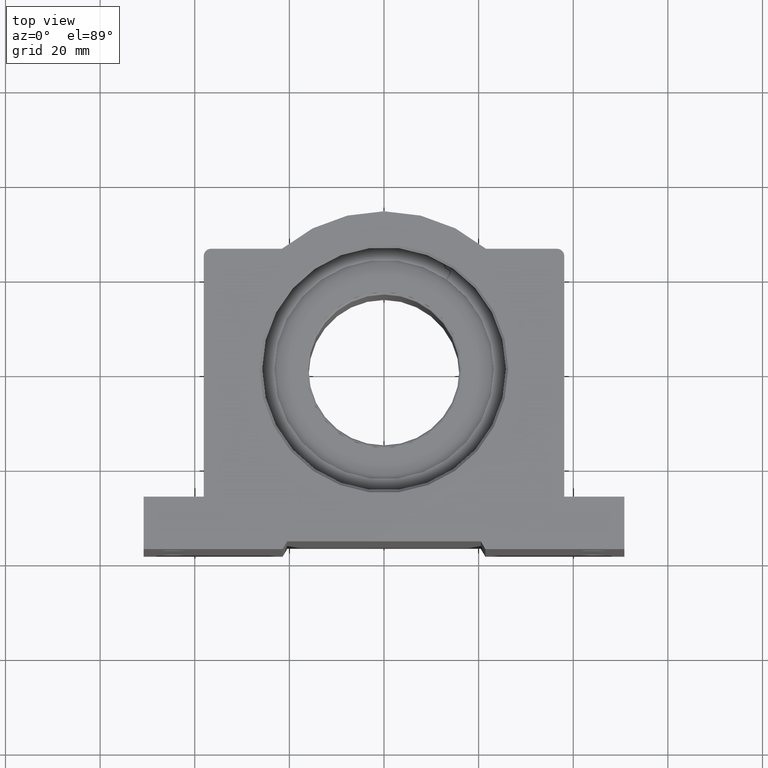
[diagram: clean part render]
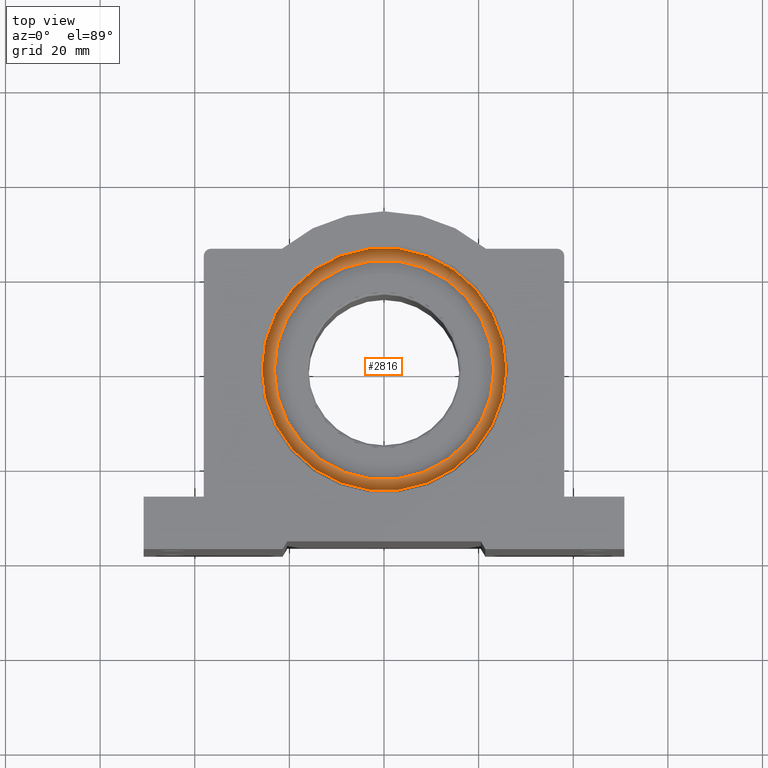
[diagram: same view with one face highlighted and labeled with its STEP entity id]
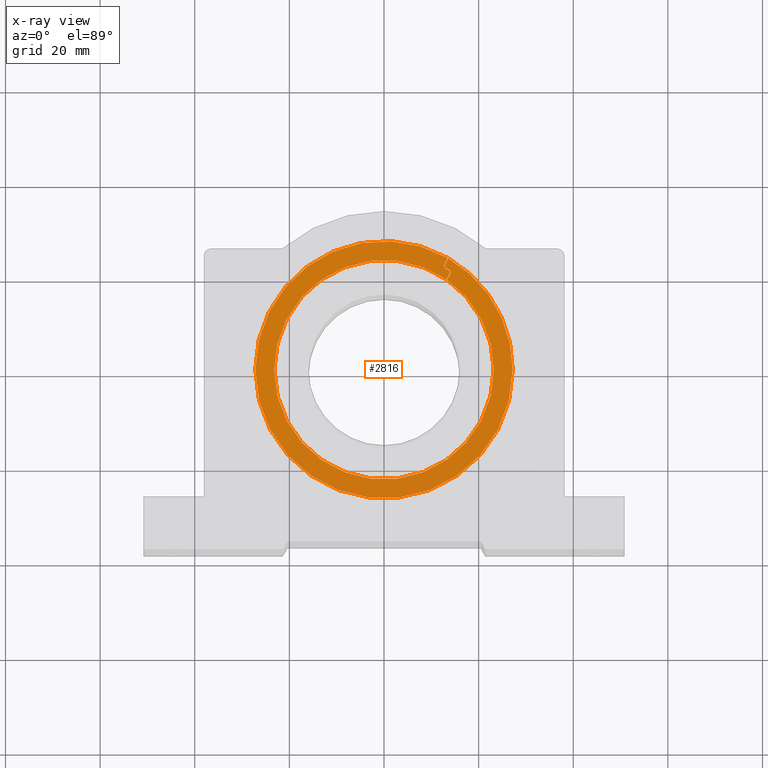
[diagram: x-ray of the same camera — body ghosted, the highlighted face saturated]
A machine part, top view. The second image highlights one B-rep face of the part: STEP entity #2816.
The next image is the same camera in x-ray: the body ghosted, the highlighted face saturated — about 0% of this face is hidden behind the body in this view.
In plain terms, the highlighted planar face has unit normal (0, 0, 1).
Its self-contained STEP definition (entity closure, byte-faithful):
#24 = EDGE_CURVE ( 'NONE', #1596, #2383, #7458, .T. ) ;
#51 = ORIENTED_EDGE ( 'NONE', *, *, #7017, .F. ) ;
#52 = CARTESIAN_POINT ( 'NONE',  ( 0.5512493402323017655, 0.7967918649211744864, 1.378249999999999975 ) ) ;
#56 = CARTESIAN_POINT ( 'NONE',  ( 0.5188053356329881405, 0.8459305338874979485, 1.378249999999999975 ) ) ;
#89 = VERTEX_POINT ( 'NONE', #3449 ) ;
#214 = AXIS2_PLACEMENT_3D ( 'NONE', #5819, #3859, #3898 ) ;
#246 = CARTESIAN_POINT ( 'NONE',  ( 0.000000000000000000, 0.000000000000000000, 1.378249999999999975 ) ) ;
#266 = CARTESIAN_POINT ( 'NONE',  ( 0.5497773379326449383, 0.8099585315878409242, 1.378249999999999975 ) ) ;
#279 = DIRECTION ( 'NONE',  ( 0.000000000000000000, 0.000000000000000000, 1.000000000000000000 ) ) ;
#306 = AXIS2_PLACEMENT_3D ( 'NONE', #5002, #6887, #6146 ) ;
#336 = VERTEX_POINT ( 'NONE', #3874 ) ;
#341 = CARTESIAN_POINT ( 'NONE',  ( 0.5319720022996546893, 0.8687358695204882020, 1.378249999999999975 ) ) ;
#363 = DIRECTION ( 'NONE',  ( 1.000000000000000000, 0.000000000000000000, 0.000000000000000000 ) ) ;
#483 = EDGE_CURVE ( 'NONE', #2383, #6367, #4600, .T. ) ;
#488 = CARTESIAN_POINT ( 'NONE',  ( 0.5163053356329879717, 0.8416004068685756234, 1.378249999999999975 ) ) ;
#497 = PLANE ( 'NONE',  #5663 ) ;
#538 = ORIENTED_EDGE ( 'NONE', *, *, #24, .F. ) ;
#607 = CIRCLE ( 'NONE', #214, 0.9129999999999999227 ) ;
#690 = EDGE_CURVE ( 'NONE', #6367, #2752, #3401, .T. ) ;
#696 = AXIS2_PLACEMENT_3D ( 'NONE', #7295, #3525, #363 ) ;
#699 = AXIS2_PLACEMENT_3D ( 'NONE', #1570, #3321, #6558 ) ;
#704 = LINE ( 'NONE', #5793, #6347 ) ;
#750 = VECTOR ( 'NONE', #6754, 39.37007874015748143 ) ;
#752 = DIRECTION ( 'NONE',  ( 0.4999999999999968359, 0.8660254037844403729, 0.000000000000000000 ) ) ;
#840 = VERTEX_POINT ( 'NONE', #4706 ) ;
#914 = EDGE_CURVE ( 'NONE', #4393, #3174, #4609, .T. ) ;
#1002 = DIRECTION ( 'NONE',  ( 1.000000000000000000, 0.000000000000000000, 0.000000000000000000 ) ) ;
#1021 = CIRCLE ( 'NONE', #3608, 0.02633333333333347931 ) ;
#1028 = VECTOR ( 'NONE', #4930, 39.37007874015748143 ) ;
#1101 = AXIS2_PLACEMENT_3D ( 'NONE', #4118, #6008, #1195 ) ;
#1118 = ORIENTED_EDGE ( 'NONE', *, *, #3172, .F. ) ;
#1143 = VERTEX_POINT ( 'NONE', #1706 ) ;
#1195 = DIRECTION ( 'NONE',  ( 1.000000000000000000, 0.000000000000000000, 0.000000000000000000 ) ) ;
#1208 = CARTESIAN_POINT ( 'NONE',  ( 0.5416106712659781719, 0.8327638672208313997, 1.378249999999999975 ) ) ;
#1349 = CIRCLE ( 'NONE', #306, 0.02633333333333347931 ) ;
#1360 = ORIENTED_EDGE ( 'NONE', *, *, #5368, .F. ) ;
#1452 = CIRCLE ( 'NONE', #7952, 0.03133333333333342824 ) ;
#1478 = VERTEX_POINT ( 'NONE', #52 ) ;
#1480 = DIRECTION ( 'NONE',  ( -0.4999999999999965583, -0.8660254037844404840, -0.000000000000000000 ) ) ;
#1487 = VERTEX_POINT ( 'NONE', #1934 ) ;
#1505 = CIRCLE ( 'NONE', #699, 0.02133333333333332915 ) ;
#1546 = VERTEX_POINT ( 'NONE', #3114 ) ;
#1570 = CARTESIAN_POINT ( 'NONE',  ( 0.5284440045993115120, 0.8099585315878409242, 1.378249999999999975 ) ) ;
#1596 = VERTEX_POINT ( 'NONE', #1208 ) ;
#1604 = AXIS2_PLACEMENT_3D ( 'NONE', #341, #1797, #4939 ) ;
#1633 = DIRECTION ( 'NONE',  ( 0.000000000000000000, 0.000000000000000000, 1.000000000000000000 ) ) ;
#1641 = CIRCLE ( 'NONE', #7768, 0.02133333333333332915 ) ;
#1682 = VERTEX_POINT ( 'NONE', #266 ) ;
#1694 = VERTEX_POINT ( 'NONE', #3275 ) ;
#1706 = CARTESIAN_POINT ( 'NONE',  ( 0.5163053356329880828, 0.8416004068685757344, 1.378249999999999975 ) ) ;
#1760 = CARTESIAN_POINT ( 'NONE',  ( -1.070999999999999952, 0.000000000000000000, 1.378249999999999975 ) ) ;
#1763 = EDGE_CURVE ( 'NONE', #1682, #8002, #1505, .T. ) ;
#1768 = CARTESIAN_POINT ( 'NONE',  ( 0.5469192132133797735, 0.7992918649211745441, 1.378249999999999975 ) ) ;
#1797 = DIRECTION ( 'NONE',  ( -0.000000000000000000, -0.000000000000000000, -1.000000000000000000 ) ) ;
#1934 = CARTESIAN_POINT ( 'NONE',  ( 0.5048365396477422218, 0.8844025361871548085, 1.378249999999999975 ) ) ;
#1967 = ORIENTED_EDGE ( 'NONE', *, *, #7185, .F. ) ;
#2043 = ORIENTED_EDGE ( 'NONE', *, *, #6411, .F. ) ;
#2117 = CARTESIAN_POINT ( 'NONE',  ( 0.5319720022996546893, 0.8687358695204882020, 1.378249999999999975 ) ) ;
#2239 = CARTESIAN_POINT ( 'NONE',  ( 0.000000000000000000, 0.000000000000000000, 1.378249999999999975 ) ) ;
#2248 = CIRCLE ( 'NONE', #696, 1.070999999999999952 ) ;
#2383 = VERTEX_POINT ( 'NONE', #56 ) ;
#2396 = CARTESIAN_POINT ( 'NONE',  ( 0.5188053356329881405, 0.8459305338874979485, 1.378249999999999975 ) ) ;
#2452 = CARTESIAN_POINT ( 'NONE',  ( 0.000000000000000000, 0.000000000000000000, 1.378249999999999975 ) ) ;
#2643 = VECTOR ( 'NONE', #752, 39.37007874015748143 ) ;
#2752 = VERTEX_POINT ( 'NONE', #7277 ) ;
#2756 = DIRECTION ( 'NONE',  ( 0.000000000000000000, 0.000000000000000000, 1.000000000000000000 ) ) ;
#2816 = ADVANCED_FACE ( 'NONE', ( #7993 ), #497, .T. ) ;
#2963 = EDGE_CURVE ( 'NONE', #1546, #4393, #6601, .T. ) ;
#2996 = CIRCLE ( 'NONE', #5600, 0.9129999999999999227 ) ;
#3019 = ORIENTED_EDGE ( 'NONE', *, *, #914, .T. ) ;
#3057 = CARTESIAN_POINT ( 'NONE',  ( 0.000000000000000000, 0.000000000000000000, 1.378249999999999975 ) ) ;
#3114 = CARTESIAN_POINT ( 'NONE',  ( 0.5311640372816772704, 0.9300030997252800580, 1.378249999999999975 ) ) ;
#3139 = CARTESIAN_POINT ( 'NONE',  ( -0.9129999999999999227, 0.000000000000000000, 1.378249999999999975 ) ) ;
#3172 = EDGE_CURVE ( 'NONE', #336, #1682, #1641, .T. ) ;
#3174 = VERTEX_POINT ( 'NONE', #3518 ) ;
#3210 = EDGE_CURVE ( 'NONE', #89, #840, #607, .T. ) ;
#3239 = VECTOR ( 'NONE', #7344, 39.37007874015748854 ) ;
#3253 = ORIENTED_EDGE ( 'NONE', *, *, #2963, .T. ) ;
#3275 = CARTESIAN_POINT ( 'NONE',  ( 0.5547773379326450538, 0.8099585315878409242, 1.378249999999999975 ) ) ;
#3321 = DIRECTION ( 'NONE',  ( -0.000000000000000000, -0.000000000000000000, -1.000000000000000000 ) ) ;
#3401 = LINE ( 'NONE', #7085, #2643 ) ;
#3403 = ORIENTED_EDGE ( 'NONE', *, *, #690, .F. ) ;
#3449 = CARTESIAN_POINT ( 'NONE',  ( 0.9129999999999999227, 1.118102527621533344E-16, 1.378249999999999975 ) ) ;
#3518 = CARTESIAN_POINT ( 'NONE',  ( 1.070999999999999952, 1.311596721886815216E-16, 1.378249999999999975 ) ) ;
#3525 = DIRECTION ( 'NONE',  ( 0.000000000000000000, 0.000000000000000000, 1.000000000000000000 ) ) ;
#3608 = AXIS2_PLACEMENT_3D ( 'NONE', #4082, #6589, #1002 ) ;
#3619 = EDGE_LOOP ( 'NONE', ( #3403, #4969, #538, #3789, #4042, #51, #4414, #2043, #1967, #6383, #6983, #1118, #1360, #6001, #5531, #3253, #3019, #6134 ) ) ;
#3627 = CARTESIAN_POINT ( 'NONE',  ( 0.5190839567990592762, 0.7510797865698639608, 1.378249999999999975 ) ) ;
#3789 = ORIENTED_EDGE ( 'NONE', *, *, #7675, .F. ) ;
#3859 = DIRECTION ( 'NONE',  ( 0.000000000000000000, 0.000000000000000000, 1.000000000000000000 ) ) ;
#3874 = CARTESIAN_POINT ( 'NONE',  ( 0.5391106712659781142, 0.8284337402019089636, 1.378249999999999975 ) ) ;
#3898 = DIRECTION ( 'NONE',  ( 1.000000000000000000, 0.000000000000000000, 0.000000000000000000 ) ) ;
#3939 = EDGE_CURVE ( 'NONE', #1478, #1694, #1021, .T. ) ;
#3968 = VERTEX_POINT ( 'NONE', #3139 ) ;
#4024 = EDGE_CURVE ( 'NONE', #8002, #5148, #4404, .T. ) ;
#4042 = ORIENTED_EDGE ( 'NONE', *, *, #3939, .F. ) ;
#4063 = EDGE_CURVE ( 'NONE', #1546, #1487, #704, .T. ) ;
#4069 = CARTESIAN_POINT ( 'NONE',  ( 0.5091666666666644359, 0.8819025361871548618, 1.378249999999999975 ) ) ;
#4082 = CARTESIAN_POINT ( 'NONE',  ( 0.5284440045993115120, 0.8099585315878409242, 1.378249999999999975 ) ) ;
#4108 = DIRECTION ( 'NONE',  ( 1.000000000000000000, 0.000000000000000000, 0.000000000000000000 ) ) ;
#4118 = CARTESIAN_POINT ( 'NONE',  ( 0.000000000000000000, 0.000000000000000000, 1.378249999999999975 ) ) ;
#4160 = DIRECTION ( 'NONE',  ( 0.000000000000000000, 0.000000000000000000, 1.000000000000000000 ) ) ;
#4191 = DIRECTION ( 'NONE',  ( 0.000000000000000000, 0.000000000000000000, 1.000000000000000000 ) ) ;
#4393 = VERTEX_POINT ( 'NONE', #1760 ) ;
#4404 = LINE ( 'NONE', #1768, #750 ) ;
#4414 = ORIENTED_EDGE ( 'NONE', *, *, #3210, .F. ) ;
#4447 = VECTOR ( 'NONE', #6381, 39.37007874015748143 ) ;
#4519 = DIRECTION ( 'NONE',  ( -1.000000000000000000, 0.000000000000000000, 0.000000000000000000 ) ) ;
#4534 = CARTESIAN_POINT ( 'NONE',  ( 0.5469192132133797735, 0.7992918649211745441, 1.378249999999999975 ) ) ;
#4600 = CIRCLE ( 'NONE', #1604, 0.02633333333333334400 ) ;
#4609 = CIRCLE ( 'NONE', #1101, 1.070999999999999952 ) ;
#4706 = CARTESIAN_POINT ( 'NONE',  ( 0.5232038695338457890, 0.7482156847492641427, 1.378249999999999975 ) ) ;
#4930 = DIRECTION ( 'NONE',  ( -0.8660254037844438146, 0.4999999999999909517, -0.000000000000000000 ) ) ;
#4939 = DIRECTION ( 'NONE',  ( -1.000000000000000000, 0.000000000000000000, 0.000000000000000000 ) ) ;
#4948 = DIRECTION ( 'NONE',  ( 1.000000000000000000, 0.000000000000000000, 0.000000000000000000 ) ) ;
#4969 = ORIENTED_EDGE ( 'NONE', *, *, #483, .F. ) ;
#5002 = CARTESIAN_POINT ( 'NONE',  ( 0.5284440045993115120, 0.8099585315878409242, 1.378249999999999975 ) ) ;
#5075 = LINE ( 'NONE', #5198, #4447 ) ;
#5148 = VERTEX_POINT ( 'NONE', #3627 ) ;
#5198 = CARTESIAN_POINT ( 'NONE',  ( 0.5512493402323017655, 0.7967918649211744864, 1.378249999999999975 ) ) ;
#5356 = DIRECTION ( 'NONE',  ( -0.000000000000000000, -0.000000000000000000, -1.000000000000000000 ) ) ;
#5368 = EDGE_CURVE ( 'NONE', #1143, #336, #6074, .T. ) ;
#5531 = ORIENTED_EDGE ( 'NONE', *, *, #4063, .F. ) ;
#5600 = AXIS2_PLACEMENT_3D ( 'NONE', #2239, #1633, #4108 ) ;
#5663 = AXIS2_PLACEMENT_3D ( 'NONE', #3057, #4191, #7922 ) ;
#5793 = CARTESIAN_POINT ( 'NONE',  ( 0.5048365396477422218, 0.8844025361871548085, 1.378249999999999975 ) ) ;
#5819 = CARTESIAN_POINT ( 'NONE',  ( 0.000000000000000000, 0.000000000000000000, 1.378249999999999975 ) ) ;
#6001 = ORIENTED_EDGE ( 'NONE', *, *, #6553, .F. ) ;
#6008 = DIRECTION ( 'NONE',  ( 0.000000000000000000, 0.000000000000000000, 1.000000000000000000 ) ) ;
#6074 = LINE ( 'NONE', #488, #3239 ) ;
#6134 = ORIENTED_EDGE ( 'NONE', *, *, #7524, .T. ) ;
#6146 = DIRECTION ( 'NONE',  ( 1.000000000000000000, 0.000000000000000000, 0.000000000000000000 ) ) ;
#6347 = VECTOR ( 'NONE', #1480, 39.37007874015748854 ) ;
#6367 = VERTEX_POINT ( 'NONE', #4069 ) ;
#6381 = DIRECTION ( 'NONE',  ( 0.4999999999999972244, 0.8660254037844402619, -0.000000000000000000 ) ) ;
#6383 = ORIENTED_EDGE ( 'NONE', *, *, #4024, .F. ) ;
#6411 = EDGE_CURVE ( 'NONE', #3968, #89, #2996, .T. ) ;
#6419 = AXIS2_PLACEMENT_3D ( 'NONE', #2452, #4160, #4948 ) ;
#6553 = EDGE_CURVE ( 'NONE', #1487, #1143, #1452, .T. ) ;
#6558 = DIRECTION ( 'NONE',  ( 1.000000000000000000, 0.000000000000000000, 0.000000000000000000 ) ) ;
#6589 = DIRECTION ( 'NONE',  ( 0.000000000000000000, 0.000000000000000000, 1.000000000000000000 ) ) ;
#6598 = DIRECTION ( 'NONE',  ( 1.000000000000000000, 0.000000000000000000, 0.000000000000000000 ) ) ;
#6601 = CIRCLE ( 'NONE', #7123, 1.070999999999999952 ) ;
#6754 = DIRECTION ( 'NONE',  ( -0.4999999999999994449, -0.8660254037844389297, 0.000000000000000000 ) ) ;
#6887 = DIRECTION ( 'NONE',  ( 0.000000000000000000, 0.000000000000000000, 1.000000000000000000 ) ) ;
#6983 = ORIENTED_EDGE ( 'NONE', *, *, #1763, .F. ) ;
#7017 = EDGE_CURVE ( 'NONE', #840, #1478, #5075, .T. ) ;
#7085 = CARTESIAN_POINT ( 'NONE',  ( 0.5091666666666644359, 0.8819025361871548618, 1.378249999999999975 ) ) ;
#7123 = AXIS2_PLACEMENT_3D ( 'NONE', #246, #2756, #7635 ) ;
#7185 = EDGE_CURVE ( 'NONE', #5148, #3968, #7211, .T. ) ;
#7211 = CIRCLE ( 'NONE', #6419, 0.9129999999999999227 ) ;
#7277 = CARTESIAN_POINT ( 'NONE',  ( 0.5354999999999975335, 0.9275132074531351467, 1.378249999999999975 ) ) ;
#7295 = CARTESIAN_POINT ( 'NONE',  ( 0.000000000000000000, 0.000000000000000000, 1.378249999999999975 ) ) ;
#7344 = DIRECTION ( 'NONE',  ( 0.8660254037844385966, -0.4999999999999998335, 0.000000000000000000 ) ) ;
#7458 = LINE ( 'NONE', #2396, #1028 ) ;
#7524 = EDGE_CURVE ( 'NONE', #3174, #2752, #2248, .T. ) ;
#7635 = DIRECTION ( 'NONE',  ( 1.000000000000000000, 0.000000000000000000, 0.000000000000000000 ) ) ;
#7675 = EDGE_CURVE ( 'NONE', #1694, #1596, #1349, .T. ) ;
#7768 = AXIS2_PLACEMENT_3D ( 'NONE', #7769, #5356, #6598 ) ;
#7769 = CARTESIAN_POINT ( 'NONE',  ( 0.5284440045993115120, 0.8099585315878409242, 1.378249999999999975 ) ) ;
#7922 = DIRECTION ( 'NONE',  ( 1.000000000000000000, 0.000000000000000000, -0.000000000000000000 ) ) ;
#7952 = AXIS2_PLACEMENT_3D ( 'NONE', #2117, #279, #4519 ) ;
#7993 = FACE_OUTER_BOUND ( 'NONE', #3619, .T. ) ;
#8002 = VERTEX_POINT ( 'NONE', #4534 ) ;